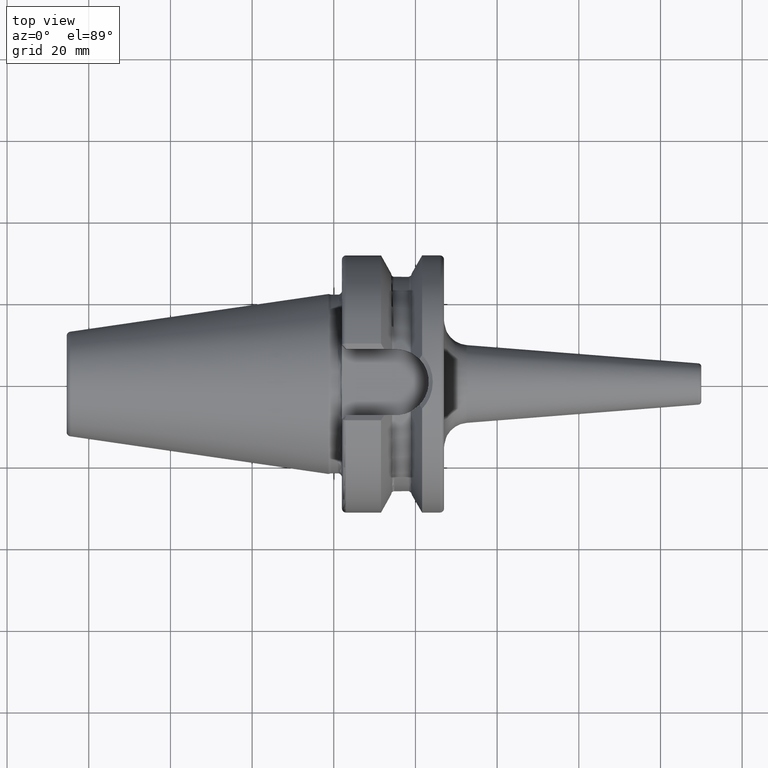
[diagram: clean part render]
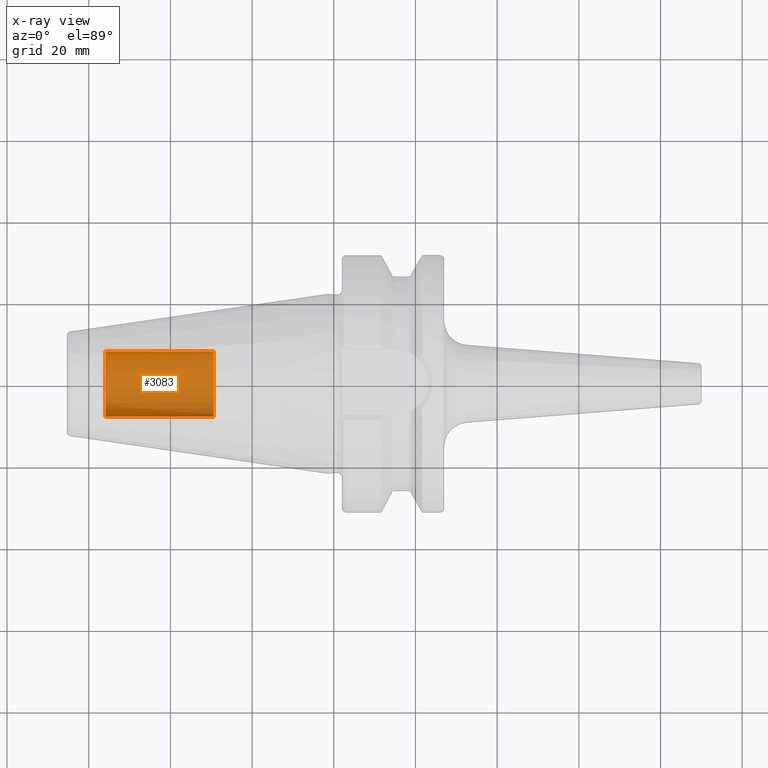
[diagram: x-ray — body ghosted, one internal face saturated and labeled with its STEP entity id]
A machine part, top view, then the same camera in x-ray: the body is ghosted and one INTERNAL B-rep face — a face not visible from any outside direction — is saturated and labeled: STEP entity #3083.
In plain terms, the highlighted cylindrical surface (edge-blend (fillet) strip) has radius 8.0028 mm, axis along (1, 0, 0).
Its self-contained STEP definition (entity closure, byte-faithful):
#3018=CARTESIAN_POINT('',(-5.595E1,0.E0,0.E0));
#3019=DIRECTION('',(-1.E0,0.E0,0.E0));
#3020=DIRECTION('',(0.E0,1.E0,0.E0));
#3021=AXIS2_PLACEMENT_3D('',#3018,#3019,#3020);
#3023=DIRECTION('',(1.E0,0.E0,0.E0));
#3024=VECTOR('',#3023,2.655E1);
#3025=CARTESIAN_POINT('',(-5.595E1,-8.00275E0,0.E0));
#3026=LINE('',#3025,#3024);
#3032=DIRECTION('',(1.E0,0.E0,0.E0));
#3033=VECTOR('',#3032,2.655E1);
#3034=CARTESIAN_POINT('',(-5.595E1,8.00275E0,0.E0));
#3035=LINE('',#3034,#3033);
#3041=CARTESIAN_POINT('',(-2.94E1,0.E0,0.E0));
#3042=DIRECTION('',(1.E0,0.E0,0.E0));
#3043=DIRECTION('',(0.E0,-1.E0,0.E0));
#3044=AXIS2_PLACEMENT_3D('',#3041,#3042,#3043);
#3056=CARTESIAN_POINT('',(-5.595E1,8.00275E0,0.E0));
#3057=CARTESIAN_POINT('',(-5.595E1,-8.00275E0,0.E0));
#3058=VERTEX_POINT('',#3056);
#3059=VERTEX_POINT('',#3057);
#3060=CARTESIAN_POINT('',(-2.94E1,8.00275E0,0.E0));
#3061=CARTESIAN_POINT('',(-2.94E1,-8.00275E0,0.E0));
#3062=VERTEX_POINT('',#3060);
#3063=VERTEX_POINT('',#3061);
#3068=CARTESIAN_POINT('',(-5.595E1,0.E0,0.E0));
#3069=DIRECTION('',(1.E0,0.E0,0.E0));
#3070=DIRECTION('',(0.E0,1.E0,0.E0));
#3071=AXIS2_PLACEMENT_3D('',#3068,#3069,#3070);
#3072=CYLINDRICAL_SURFACE('',#3071,8.00275E0);
#3074=ORIENTED_EDGE('',*,*,#3073,.T.);
#3076=ORIENTED_EDGE('',*,*,#3075,.T.);
#3078=ORIENTED_EDGE('',*,*,#3077,.T.);
#3080=ORIENTED_EDGE('',*,*,#3079,.F.);
#3081=EDGE_LOOP('',(#3074,#3076,#3078,#3080));
#3082=FACE_OUTER_BOUND('',#3081,.F.);
#3083=ADVANCED_FACE('',(#3082),#3072,.T.);
#3022=CIRCLE('',#3021,8.00275E0);
#3045=CIRCLE('',#3044,8.00275E0);
#3073=EDGE_CURVE('',#3058,#3059,#3022,.T.);
#3075=EDGE_CURVE('',#3059,#3063,#3026,.T.);
#3077=EDGE_CURVE('',#3063,#3062,#3045,.T.);
#3079=EDGE_CURVE('',#3058,#3062,#3035,.T.);